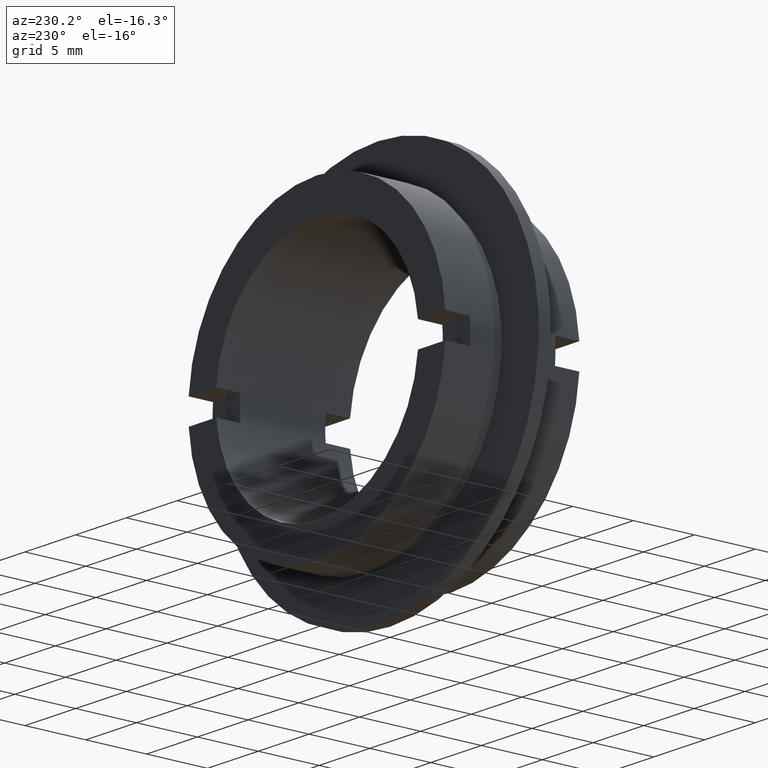
[diagram: clean part render]
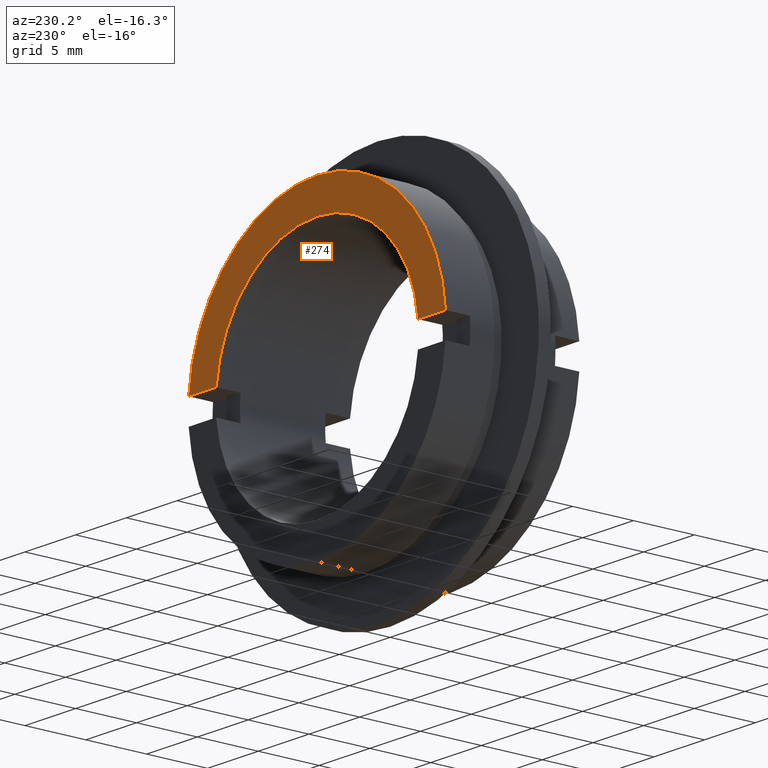
[diagram: same view with one face highlighted and labeled with its STEP entity id]
A machine part, auxiliary view. The second image highlights one B-rep face of the part: STEP entity #274.
In plain terms, the highlighted planar face has unit normal (-0, 1, 0).
Its self-contained STEP definition (entity closure, byte-faithful):
#32 = ORIENTED_EDGE ( 'NONE', *, *, #287, .T. ) ;
#49 = AXIS2_PLACEMENT_3D ( 'NONE', #1076, #688, #1014 ) ;
#61 = EDGE_CURVE ( 'NONE', #313, #966, #907, .T. ) ;
#82 = ORIENTED_EDGE ( 'NONE', *, *, #240, .F. ) ;
#83 = EDGE_CURVE ( 'NONE', #858, #886, #479, .T. ) ;
#90 = DIRECTION ( 'NONE',  ( 0.0000000000000000000, 0.0000000000000000000, 1.000000000000000000 ) ) ;
#121 = VECTOR ( 'NONE', #656, 1000.000000000000000 ) ;
#147 = ORIENTED_EDGE ( 'NONE', *, *, #224, .F. ) ;
#162 = CARTESIAN_POINT ( 'NONE',  ( -9.999999999999996400, 11.00000000000000000, 0.0000000000000000000 ) ) ;
#194 = CARTESIAN_POINT ( 'NONE',  ( -9.999999999999996400, 11.00000000000000000, 1.000000000000001300 ) ) ;
#224 = EDGE_CURVE ( 'NONE', #1114, #966, #1108, .T. ) ;
#240 = EDGE_CURVE ( 'NONE', #886, #1114, #496, .T. ) ;
#245 = DIRECTION ( 'NONE',  ( 0.0000000000000000000, 0.0000000000000000000, 1.000000000000000000 ) ) ;
#249 = CARTESIAN_POINT ( 'NONE',  ( 0.0000000000000000000, 11.00000000000000000, 9.999999999999996400 ) ) ;
#266 = AXIS2_PLACEMENT_3D ( 'NONE', #1119, #664, #471 ) ;
#274 = ADVANCED_FACE ( 'NONE', ( #275 ), #286, .T. ) ;
#275 = FACE_OUTER_BOUND ( 'NONE', #1024, .T. ) ;
#286 = PLANE ( 'NONE',  #1133 ) ;
#287 = EDGE_CURVE ( 'NONE', #915, #313, #356, .T. ) ;
#313 = VERTEX_POINT ( 'NONE', #1101 ) ;
#331 = CARTESIAN_POINT ( 'NONE',  ( -9.949874371066195900, 11.00000000000000000, 1.000000000000001300 ) ) ;
#341 = VECTOR ( 'NONE', #717, 1000.000000000000000 ) ;
#356 = CIRCLE ( 'NONE', #266, 12.69999999999999800 ) ;
#390 = DIRECTION ( 'NONE',  ( -0.0000000000000000000, 1.000000000000000000, -0.0000000000000000000 ) ) ;
#445 = CARTESIAN_POINT ( 'NONE',  ( -12.66056870760551300, 11.00000000000000000, 1.000000000000003100 ) ) ;
#471 = DIRECTION ( 'NONE',  ( 0.0000000000000000000, 0.0000000000000000000, 1.000000000000000000 ) ) ;
#479 = CIRCLE ( 'NONE', #539, 9.999999999999996400 ) ;
#487 = CARTESIAN_POINT ( 'NONE',  ( 0.0000000000000000000, 11.00000000000000000, 0.0000000000000000000 ) ) ;
#496 = CIRCLE ( 'NONE', #49, 9.999999999999996400 ) ;
#500 = DIRECTION ( 'NONE',  ( -0.0000000000000000000, 1.000000000000000000, -0.0000000000000000000 ) ) ;
#539 = AXIS2_PLACEMENT_3D ( 'NONE', #487, #390, #90 ) ;
#623 = DIRECTION ( 'NONE',  ( 0.0000000000000000000, 0.0000000000000000000, 1.000000000000000000 ) ) ;
#631 = CARTESIAN_POINT ( 'NONE',  ( 0.0000000000000000000, 11.00000000000000000, 0.0000000000000000000 ) ) ;
#656 = DIRECTION ( 'NONE',  ( 1.000000000000000000, 0.0000000000000000000, 0.0000000000000000000 ) ) ;
#664 = DIRECTION ( 'NONE',  ( -0.0000000000000000000, 1.000000000000000000, -0.0000000000000000000 ) ) ;
#688 = DIRECTION ( 'NONE',  ( -0.0000000000000000000, 1.000000000000000000, -0.0000000000000000000 ) ) ;
#713 = DIRECTION ( 'NONE',  ( -0.0000000000000000000, 1.000000000000000000, 0.0000000000000000000 ) ) ;
#717 = DIRECTION ( 'NONE',  ( 1.000000000000000000, 0.0000000000000000000, 0.0000000000000000000 ) ) ;
#760 = LINE ( 'NONE', #194, #341 ) ;
#764 = ORIENTED_EDGE ( 'NONE', *, *, #61, .T. ) ;
#812 = CARTESIAN_POINT ( 'NONE',  ( -9.999999999999996400, 11.00000000000000000, 1.000000000000001300 ) ) ;
#853 = CARTESIAN_POINT ( 'NONE',  ( 12.66056870760551300, 11.00000000000000000, 1.000000000000003100 ) ) ;
#858 = VERTEX_POINT ( 'NONE', #331 ) ;
#881 = CARTESIAN_POINT ( 'NONE',  ( 9.949874371066195900, 11.00000000000000000, 1.000000000000001300 ) ) ;
#886 = VERTEX_POINT ( 'NONE', #249 ) ;
#907 = CIRCLE ( 'NONE', #983, 12.69999999999999800 ) ;
#915 = VERTEX_POINT ( 'NONE', #445 ) ;
#966 = VERTEX_POINT ( 'NONE', #853 ) ;
#983 = AXIS2_PLACEMENT_3D ( 'NONE', #631, #500, #245 ) ;
#1014 = DIRECTION ( 'NONE',  ( 0.0000000000000000000, 0.0000000000000000000, 1.000000000000000000 ) ) ;
#1024 = EDGE_LOOP ( 'NONE', ( #1054, #32, #764, #147, #82, #1052 ) ) ;
#1052 = ORIENTED_EDGE ( 'NONE', *, *, #83, .F. ) ;
#1054 = ORIENTED_EDGE ( 'NONE', *, *, #1080, .F. ) ;
#1076 = CARTESIAN_POINT ( 'NONE',  ( 0.0000000000000000000, 11.00000000000000000, 0.0000000000000000000 ) ) ;
#1080 = EDGE_CURVE ( 'NONE', #915, #858, #760, .T. ) ;
#1101 = CARTESIAN_POINT ( 'NONE',  ( 0.0000000000000000000, 11.00000000000000000, 12.69999999999999800 ) ) ;
#1108 = LINE ( 'NONE', #812, #121 ) ;
#1114 = VERTEX_POINT ( 'NONE', #881 ) ;
#1119 = CARTESIAN_POINT ( 'NONE',  ( 0.0000000000000000000, 11.00000000000000000, 0.0000000000000000000 ) ) ;
#1133 = AXIS2_PLACEMENT_3D ( 'NONE', #162, #713, #623 ) ;